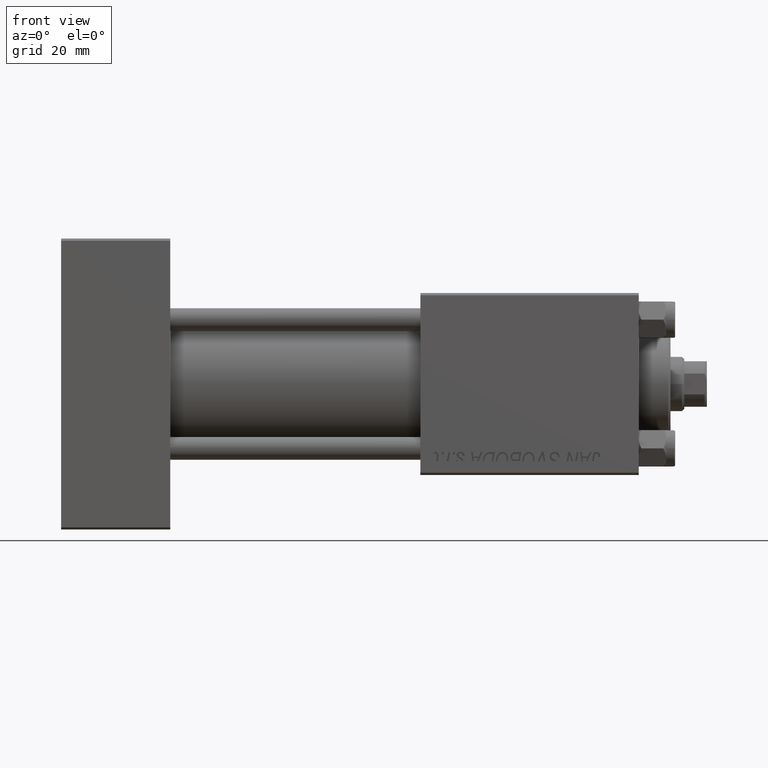
[diagram: clean part render]
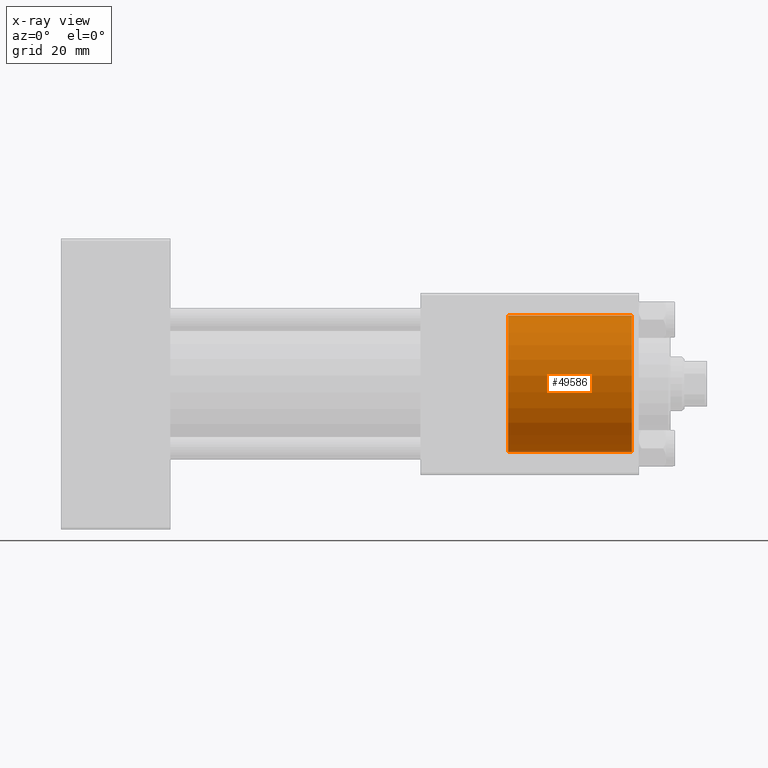
[diagram: x-ray — body ghosted, one internal face saturated and labeled with its STEP entity id]
A machine part, front view, then the same camera in x-ray: the body is ghosted and one INTERNAL B-rep face — a face not visible from any outside direction — is saturated and labeled: STEP entity #49586.
In plain terms, the highlighted cylindrical surface (partial cylindrical patch) has radius 15 mm, axis along (1, 0, 0).
Its self-contained STEP definition (entity closure, byte-faithful):
#525 = EDGE_CURVE ( 'NONE', #10347, #43206, #28607, .T. ) ;
#942 = VERTEX_POINT ( 'NONE', #32571 ) ;
#5979 = DIRECTION ( 'NONE',  ( 1.000000000000000000, -0.000000000000000000, -0.000000000000000000 ) ) ;
#7460 = ORIENTED_EDGE ( 'NONE', *, *, #525, .F. ) ;
#8240 = CARTESIAN_POINT ( 'NONE',  ( 98.29999999999999716, 0.000000000000000000, 0.000000000000000000 ) ) ;
#10347 = VERTEX_POINT ( 'NONE', #21755 ) ;
#11255 = EDGE_CURVE ( 'NONE', #942, #19959, #18338, .T. ) ;
#12809 = CARTESIAN_POINT ( 'NONE',  ( 98.29999999999999716, 1.836970198721029589E-15, 15.00000000000000000 ) ) ;
#15341 = ORIENTED_EDGE ( 'NONE', *, *, #49526, .T. ) ;
#15827 = ORIENTED_EDGE ( 'NONE', *, *, #43365, .F. ) ;
#17117 = DIRECTION ( 'NONE',  ( 1.000000000000000000, -0.000000000000000000, -0.000000000000000000 ) ) ;
#18338 = CIRCLE ( 'NONE', #38747, 15.00000000000000000 ) ;
#19959 = VERTEX_POINT ( 'NONE', #23447 ) ;
#21581 = CARTESIAN_POINT ( 'NONE',  ( 125.4999999999999716, 0.000000000000000000, 0.000000000000000000 ) ) ;
#21755 = CARTESIAN_POINT ( 'NONE',  ( 98.29999999999999716, 1.836970198721029589E-15, 15.00000000000000000 ) ) ;
#22169 = AXIS2_PLACEMENT_3D ( 'NONE', #8240, #38992, #28592 ) ;
#23447 = CARTESIAN_POINT ( 'NONE',  ( 125.4999999999999716, 0.000000000000000000, -15.00000000000000000 ) ) ;
#25165 = CYLINDRICAL_SURFACE ( 'NONE', #46037, 15.00000000000000000 ) ;
#27124 = LINE ( 'NONE', #45809, #28945 ) ;
#27521 = VECTOR ( 'NONE', #17117, 1000.000000000000000 ) ;
#28592 = DIRECTION ( 'NONE',  ( 0.000000000000000000, 0.000000000000000000, -1.000000000000000000 ) ) ;
#28607 = CIRCLE ( 'NONE', #22169, 15.00000000000000000 ) ;
#28945 = VECTOR ( 'NONE', #38234, 1000.000000000000000 ) ;
#29151 = DIRECTION ( 'NONE',  ( 1.000000000000000000, 0.000000000000000000, 0.000000000000000000 ) ) ;
#31970 = LINE ( 'NONE', #12809, #27521 ) ;
#32571 = CARTESIAN_POINT ( 'NONE',  ( 125.4999999999999716, 1.836970198721029589E-15, 15.00000000000000000 ) ) ;
#34556 = EDGE_LOOP ( 'NONE', ( #7460, #15341, #38049, #15827 ) ) ;
#36753 = DIRECTION ( 'NONE',  ( 0.000000000000000000, 0.000000000000000000, -1.000000000000000000 ) ) ;
#36959 = DIRECTION ( 'NONE',  ( 0.000000000000000000, 0.000000000000000000, 1.000000000000000000 ) ) ;
#38049 = ORIENTED_EDGE ( 'NONE', *, *, #11255, .T. ) ;
#38234 = DIRECTION ( 'NONE',  ( 1.000000000000000000, -0.000000000000000000, -0.000000000000000000 ) ) ;
#38747 = AXIS2_PLACEMENT_3D ( 'NONE', #21581, #29151, #36959 ) ;
#38992 = DIRECTION ( 'NONE',  ( 1.000000000000000000, 0.000000000000000000, 0.000000000000000000 ) ) ;
#39788 = CARTESIAN_POINT ( 'NONE',  ( 98.29999999999999716, 0.000000000000000000, 0.000000000000000000 ) ) ;
#43206 = VERTEX_POINT ( 'NONE', #43619 ) ;
#43365 = EDGE_CURVE ( 'NONE', #43206, #19959, #27124, .T. ) ;
#43619 = CARTESIAN_POINT ( 'NONE',  ( 98.29999999999999716, 0.000000000000000000, -15.00000000000000000 ) ) ;
#45809 = CARTESIAN_POINT ( 'NONE',  ( 98.29999999999999716, 0.000000000000000000, -15.00000000000000000 ) ) ;
#46037 = AXIS2_PLACEMENT_3D ( 'NONE', #39788, #5979, #36753 ) ;
#48131 = FACE_OUTER_BOUND ( 'NONE', #34556, .T. ) ;
#49526 = EDGE_CURVE ( 'NONE', #10347, #942, #31970, .T. ) ;
#49586 = ADVANCED_FACE ( 'NONE', ( #48131 ), #25165, .F. ) ;